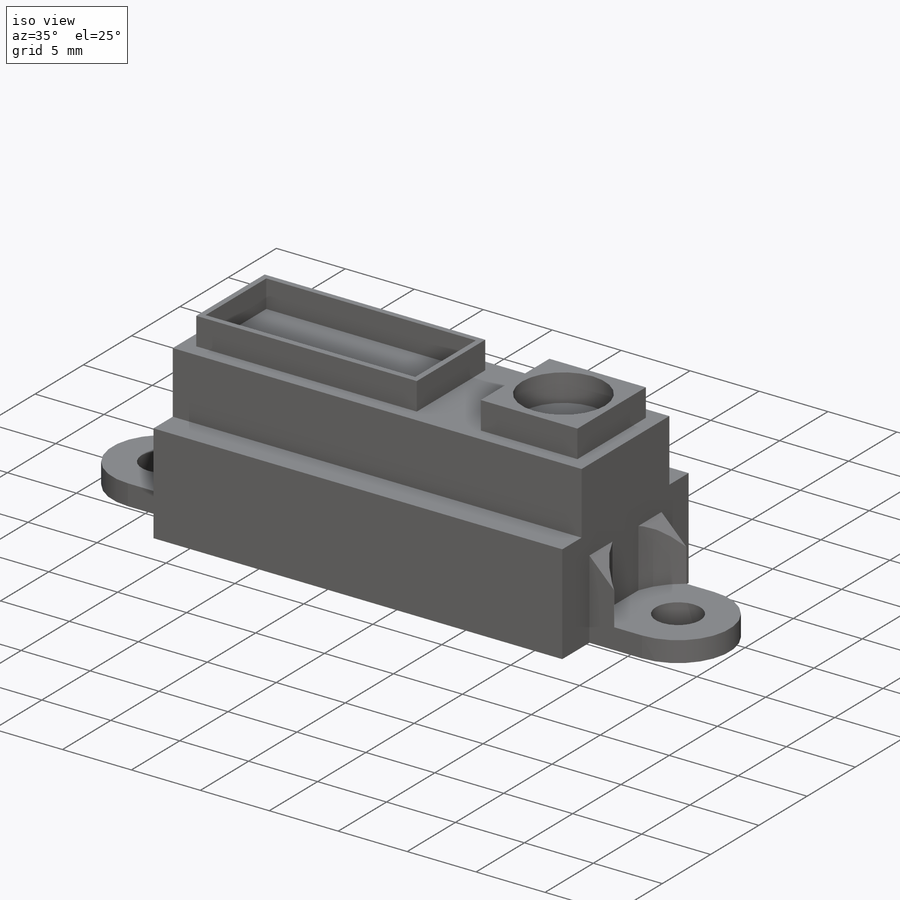
[diagram: iso view]
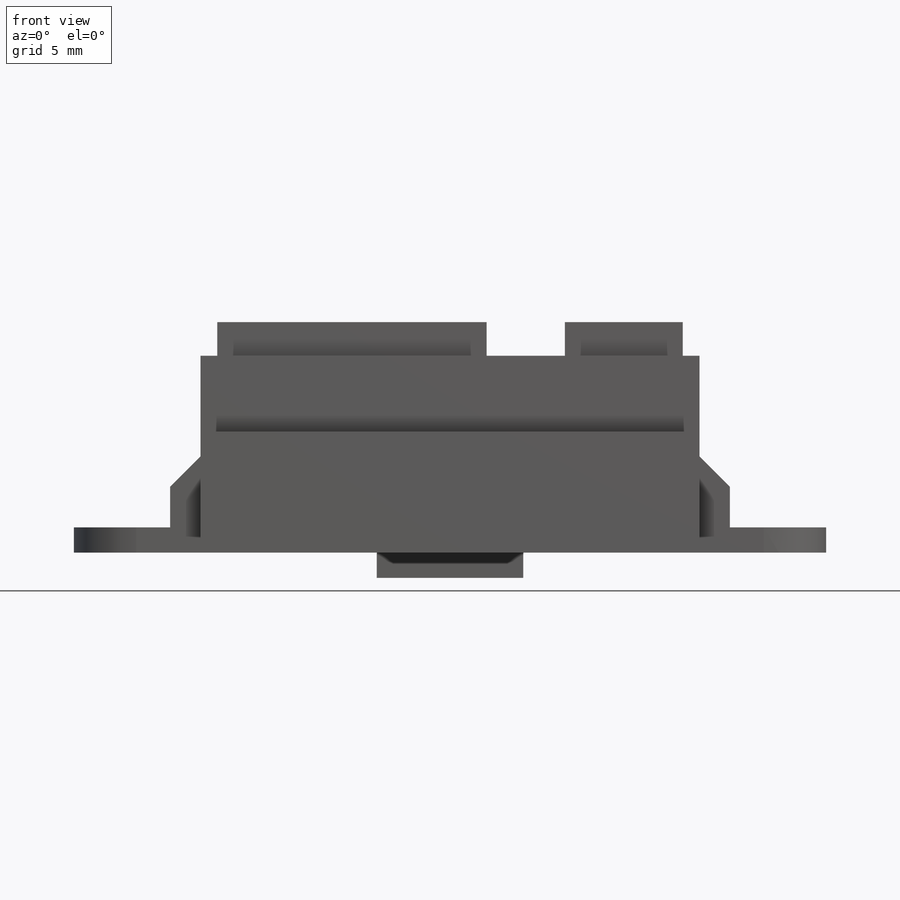
[diagram: front view]
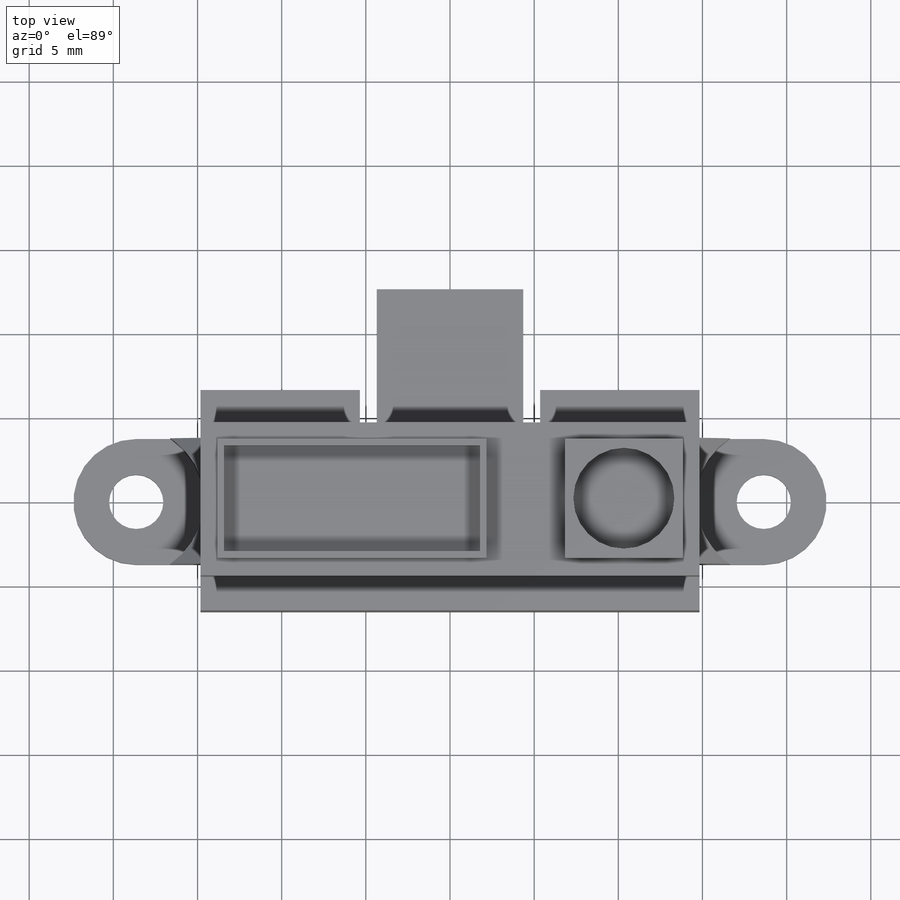
[diagram: top view]
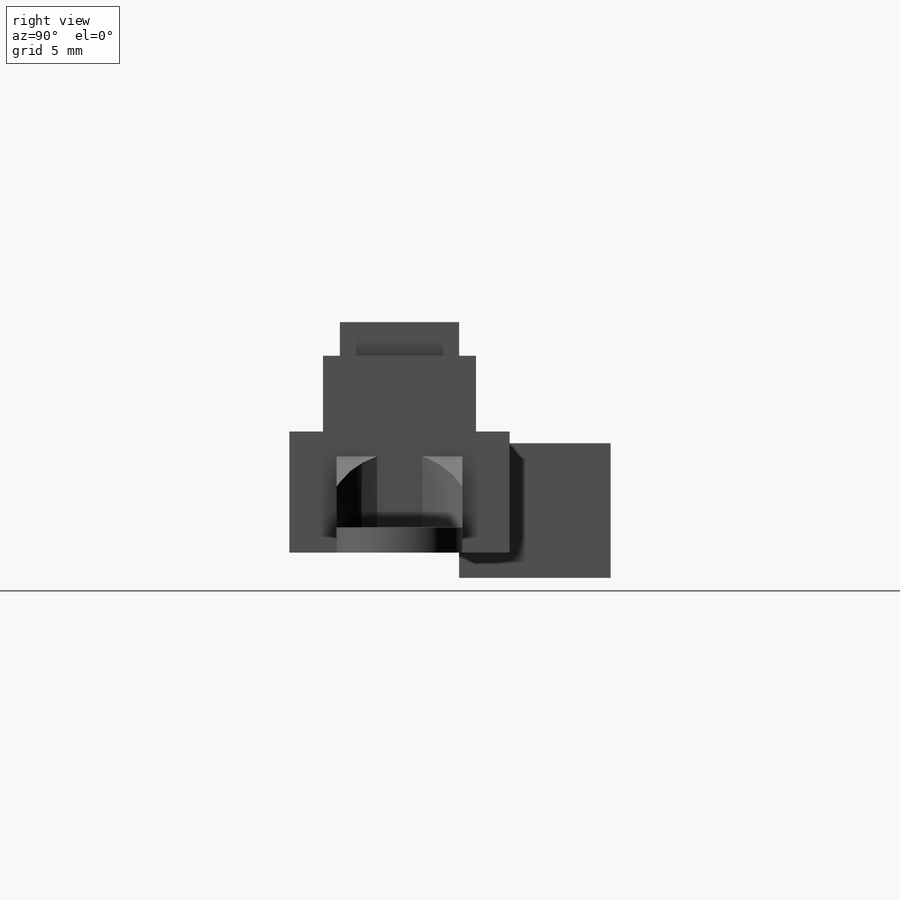
[diagram: right view]
SOLIDWORKS PART (.sldprt)
format: sldprt  version: not decoded by parser v0  size: 467,456 bytes
history: native  units: mm
features: sketch x10, extrude x8, cut_extrude x2, material x1, plane x1 (+12 scaffold rows collapsed)
feature tree (34):
  scaffold x12  (default folders/planes/origin — collapsed)
  material  "ABS"
  sketch  "Sketch1"  dims[c1.D1=29.65mm c1.D2=13.09mm c1.D3=332.486mm c1.D4=5.355mm c2.D3=0.77mm]
  extrude  "Boss-Extrude1"  Depth=7.2mm
  sketch  "Sketch2"  dims[D1=3.22mm D2=7.47mm D3=7.55mm]
  extrude  "Boss-Extrude2"  Depth=1.5mm
  sketch  "Sketch3"  dims[D1=2.22mm]
  extrude  "Boss-Extrude3"  Depth=0.7mm
  plane  "Plane1"  Offset=3.37mm
  sketch  "Sketch7"  dims[D1=1.8mm D2=2.4mm]
  extrude  "Boss-Extrude7"  Depth=4.22mm
  sketch  "Sketch8"  dims[c1.D1=1.8mm c2.D1=45.0deg]
  cut_extrude  "Cut-Extrude1"  [1 undecoded]
  sketch  "Esquisse1"  dims[c1.D1=~8.654619mm c1.D2=29.65mm c2.D1=2.0mm c2.D2=2.0mm]
  extrude  "Boss.-Extru.1"  Depth=4.5mm
  sketch  "Esquisse3"  dims[c1.D1=~6.59186mm c1.D2=~8.251036mm c2.D1=~6.59186mm c2.D2=~9.596313mm c3.D1=16.0mm c3.D2=7.0mm c3.D3=1.0mm c3.D4=1.0mm c3.D5=1.0mm c3.D6=1.0mm c3.D7=1.0mm c3.D8=1.0mm c3.D9=7.09mm]
  extrude  "Boss.-Extru.2"  Depth=2mm
  sketch  "Esquisse4"  dims[c1.D5=~4.881255mm c1.D7=6.0mm c1.D1=~5.515638mm c1.D2=~14.484155mm c2.D1=0.4mm c2.D2=0.4mm c2.D3=0.4mm c2.D4=0.4mm c2.D5=3.5mm c2.D6=3.545mm]
  cut_extrude  "Enlèv. mat.-Extru.1"  Depth=2mm
  sketch  "Esquisse5"  dims[c1.D1=~2.865692mm c1.D2=~8.968517mm c2.D1=8.0mm c2.D2=1.0mm c2.D3=1.0mm c2.D4=~6.053749mm c2.D5=~6.726388mm c3.D4=1.0mm c3.D5=1.0mm c3.D6=1.0mm c3.D7=1.0mm c3.D1=~2.325292mm c3.D2=~8.878832mm c4.D1=1.0mm c4.D2=1.0mm c4.D3=1.0mm]
  extrude  "Boss.-Extru.3"  Depth=8mm
  sketch  "Esquisse6"  dims[c1.D1=8.0mm c1.D2=8.71mm c2.D1=~5.135884mm c2.D2=~6.143434mm c3.D1=1.0mm c3.D2=1.0mm c3.D3=1.0mm c3.D4=1.0mm c4.D3=1.0mm]
  extrude  "Boss.-Extru.4"  Depth=8mm
decode coverage: 19 of 20 modeling features carry decoded parameters
note: ~ marks probable driven/reference dimensions
note: 1 parameter value undecoded
note: suppression state not decoded; provenance and decode notes live in map.json
